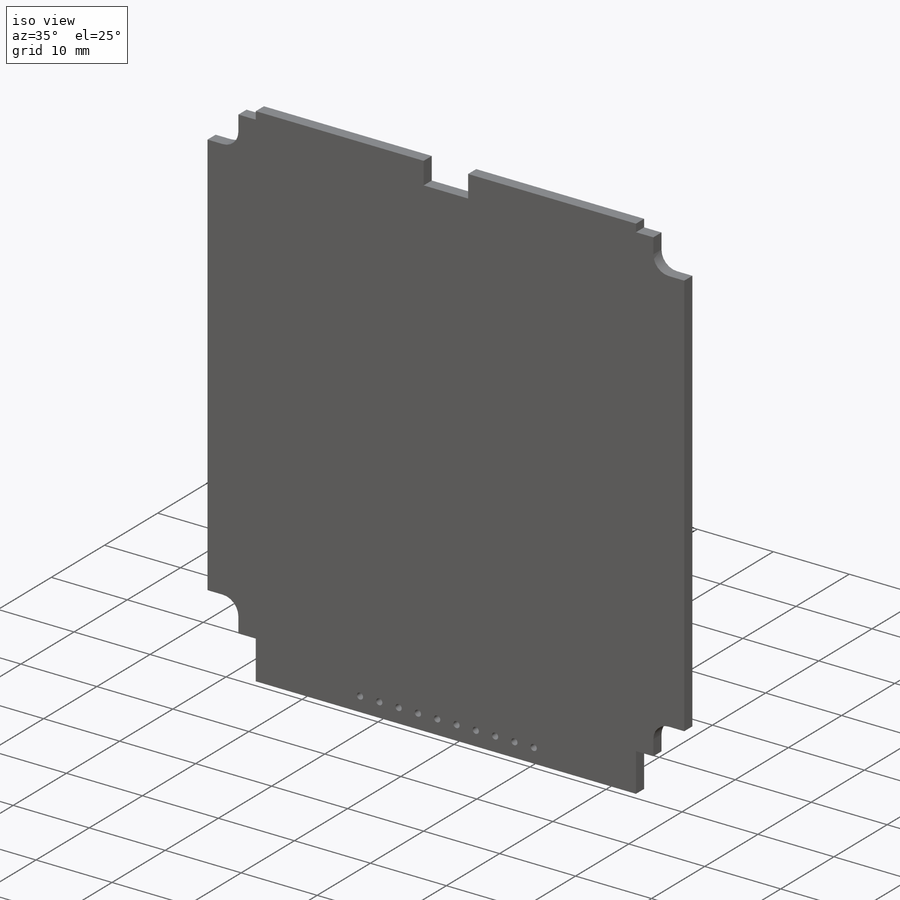
[diagram: iso view]
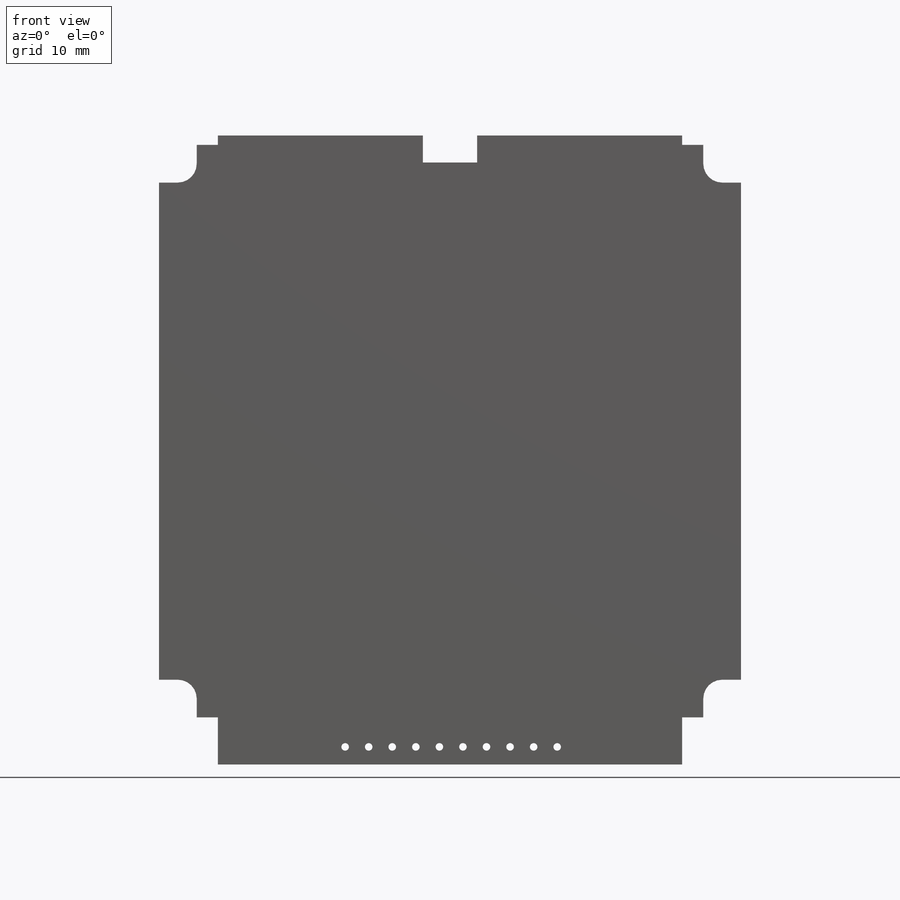
[diagram: front view]
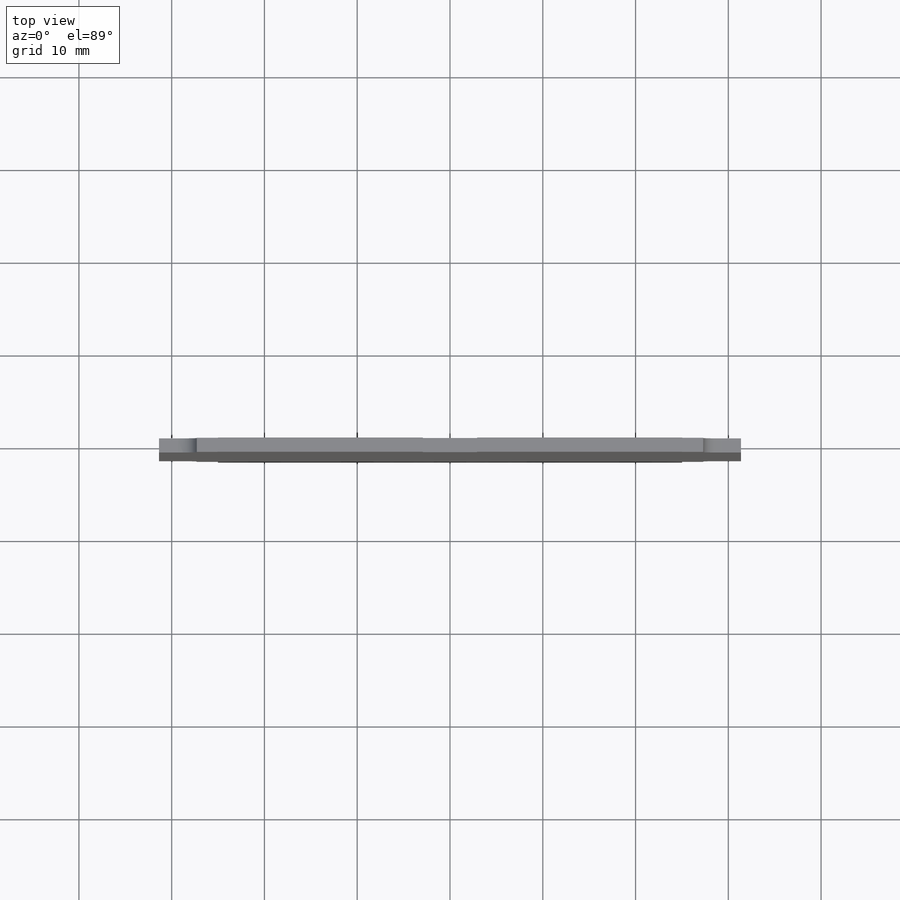
[diagram: top view]
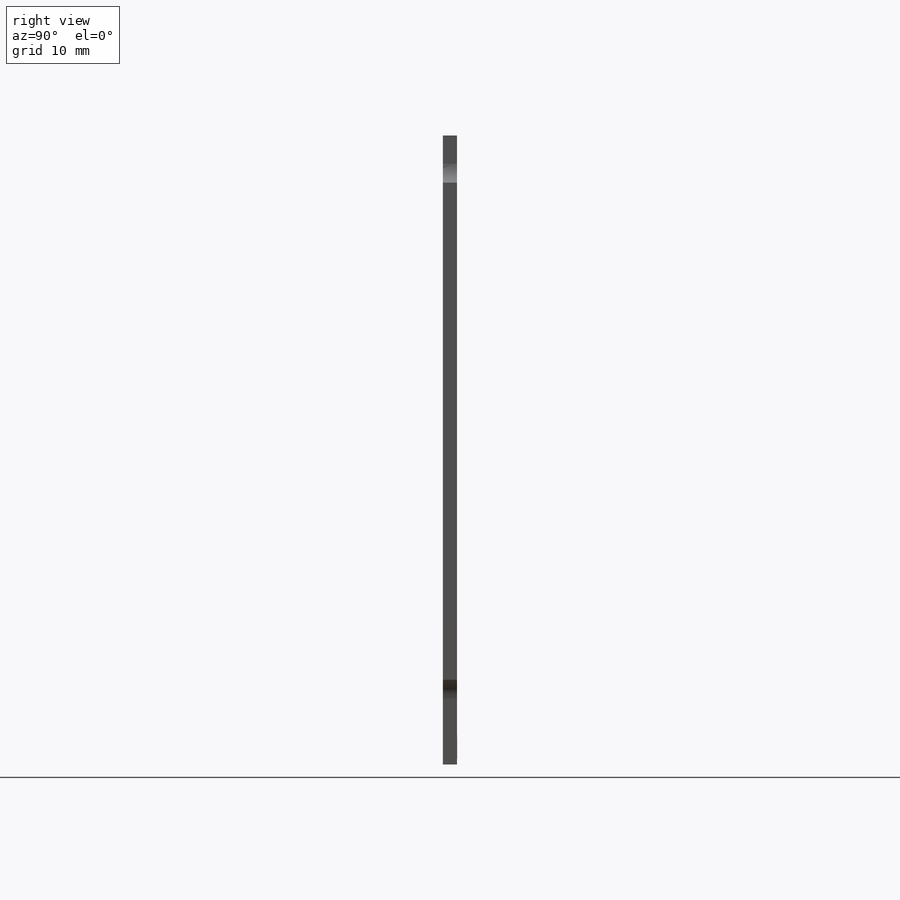
[diagram: right view]
SOLIDWORKS PART (.sldprt)
format: sldprt  version: not decoded by parser v0  size: 316,928 bytes
history: native  units: mm
features: sketch x5, cut_extrude x3, extrude x2, mirror x2, material x1, plane x1, pattern_linear x1 (+14 scaffold rows collapsed)
feature tree (29):
  scaffold x14  (default folders/planes/origin — collapsed)
  material  "Material <not specified>"
  sketch  "Sketch1"  dims[D1=62.738mm D2=67.818mm]
  extrude  "PCB"  Depth=1.524mm
  sketch  "Sketch2"  dims[D3=2.032mm D1=1.016mm D2=4.064mm D4=6.35mm D5=6.35mm]
  cut_extrude  "cut1"  [1 undecoded]
  mirror  "Mirror1"
  plane  "Plane1"  Offset=35.941mm
  mirror  "Mirror3"
  sketch  "Sketch4"  dims[D1=5.842mm D2=2.921mm]
  cut_extrude  "cutout"  Depth=1.524mm
  sketch  "Sketch3"  dims[D3=0.8128mm D1=1.905mm D2=13.716mm D4=2.54mm]
  cut_extrude  "holes"  [1 undecoded]
  sketch  "Sketch5"  dims[c1.D2=0.635mm c1.D1=1.27mm c2.D2=1.27mm]
  extrude  "solder pad"  Depth=0.0254mm
  pattern_linear  "LPattern1"  Count1=10 Count2=1 Spacing1=2.54mm Spacing2=2.54mm
decode coverage: 9 of 13 modeling features carry decoded parameters
note: 2 parameter values undecoded
note: suppression state not decoded; provenance and decode notes live in map.json
